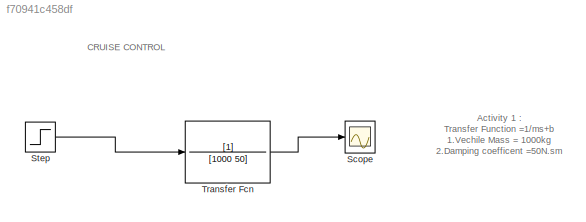
MODEL slx_f70941c458df
KIND model
CONFIG AbsTol = auto
CONFIG EnableMultiTasking = off
CONFIG FixedStep = auto
CONFIG MaxStep = auto
CONFIG MinStep = auto
CONFIG RelTol = 1e-3
CONFIG SampleTimeConstraint = Unconstrained
CONFIG SolverName = VariableStepAuto
CONFIG StartTime = 0.0
CONFIG StopTime = 10.0
BLOCK [Scope] Scope
  Floating = off
  NumInputPorts = 1
  Ports = [1]
  ScopeSpecificationString = Simulink.scopes.TimeScopeBlockCfg('CurrentConfiguration', extmgr.ConfigurationSet(extmgr.Configuration('Core','General UI',true),extmgr.Configuration('Core','Source UI',true),extmgr.Configuration('Sources','WiredSimulink',true),extmgr.Configuration('Visuals','Time Domain',true,'SerializedDisplays',{struct('MinYLimReal','-0.0119','MaxYLimReal','0.10706','YLabelReal','','MinYLimMag','0.00000','MaxYL...<+1330ch>
BLOCK [Step] Step
  SampleTime = 0
BLOCK [TransferFcn] Transfer Fcn
  Denominator = [1000 50]
ANNOTATION (root): Activity 1 : Transfer Function =1/ms+b 1.Vechile Mass = 1000kg 2.Damping coefficent =50N.sm
ANNOTATION (root): CRUISE CONTROL
LINE Step:1 -> Transfer Fcn:1
LINE Transfer Fcn:1 -> Scope:1
